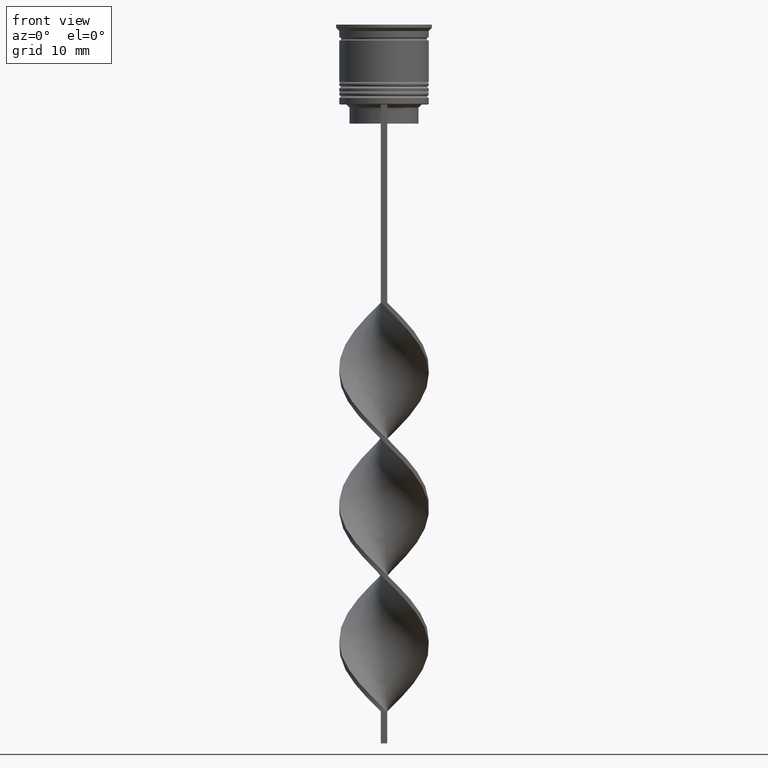
[diagram: clean part render]
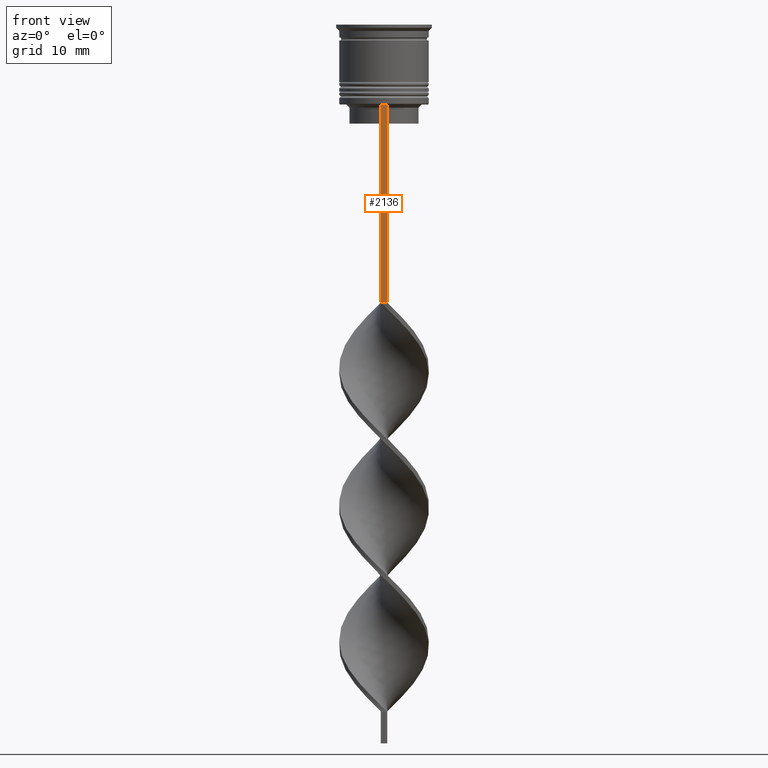
[diagram: same view with one face highlighted and labeled with its STEP entity id]
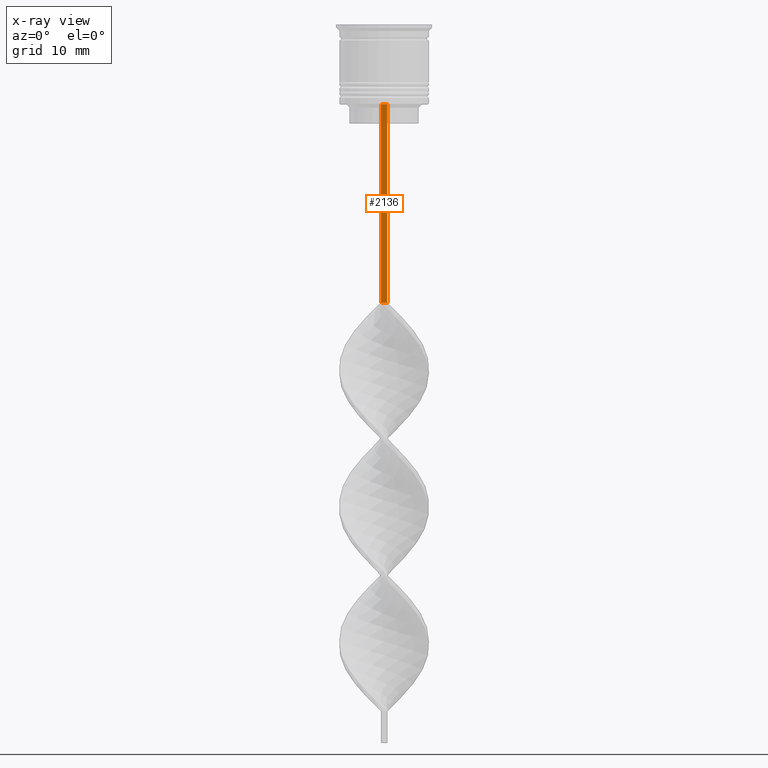
[diagram: x-ray of the same camera — body ghosted, the highlighted face saturated]
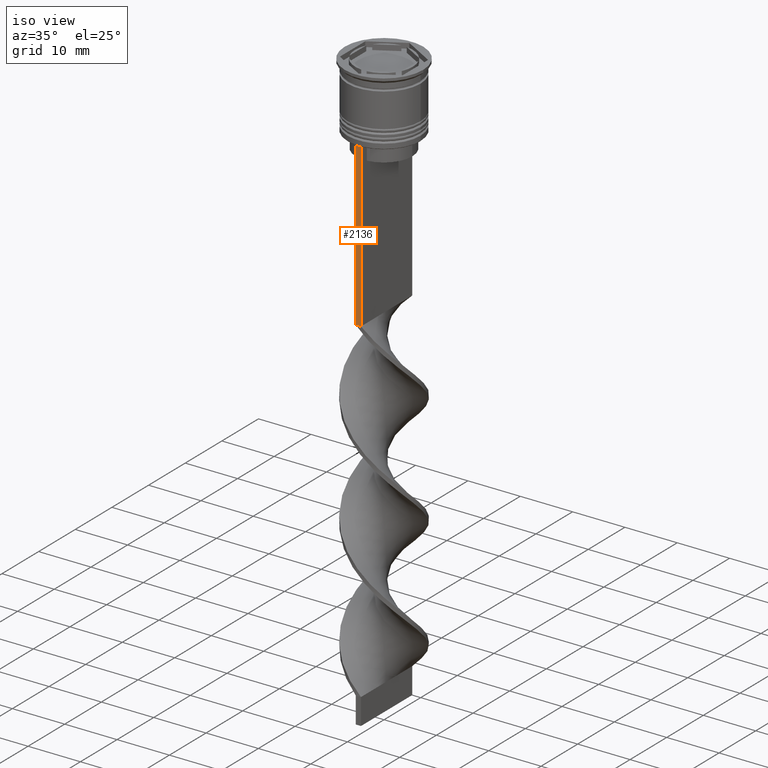
[diagram: same view with one face highlighted and labeled with its STEP entity id]
A machine part, front view. The second image highlights one B-rep face of the part: STEP entity #2136.
The next image is the same camera in x-ray: the body ghosted, the highlighted face saturated — about 0% of this face is hidden behind the body in this view.
A second angle (iso view) of the same face is appended — the face is thin or edge-on in the first view.
In plain terms, the highlighted planar face has unit normal (0, -1, -0).
Its self-contained STEP definition (entity closure, byte-faithful):
#401 = DIRECTION ( 'NONE',  ( 0.000000000000000000, -1.000000000000000000, -0.000000000000000000 ) ) ;
#423 = CARTESIAN_POINT ( 'NONE',  ( 0.5000000000000000000, -6.999999999999997335, 1.535668847618198329 ) ) ;
#630 = ORIENTED_EDGE ( 'NONE', *, *, #2573, .F. ) ;
#655 = DIRECTION ( 'NONE',  ( 0.000000000000000000, 0.000000000000000000, -1.000000000000000000 ) ) ;
#674 = EDGE_CURVE ( 'NONE', #2022, #3461, #1084, .T. ) ;
#711 = PLANE ( 'NONE',  #2145 ) ;
#742 = EDGE_LOOP ( 'NONE', ( #1028, #3161, #1706, #630 ) ) ;
#794 = CARTESIAN_POINT ( 'NONE',  ( 0.5000000000000000000, -6.999999999999997335, -43.50000000000000000 ) ) ;
#1028 = ORIENTED_EDGE ( 'NONE', *, *, #674, .F. ) ;
#1084 = LINE ( 'NONE', #2696, #1110 ) ;
#1110 = VECTOR ( 'NONE', #2742, 1000.000000000000000 ) ;
#1376 = LINE ( 'NONE', #794, #2025 ) ;
#1455 = CARTESIAN_POINT ( 'NONE',  ( 0.5000000000000000000, -6.999999999999997335, 1.535668847618198329 ) ) ;
#1587 = EDGE_CURVE ( 'NONE', #2150, #3521, #1376, .T. ) ;
#1656 = LINE ( 'NONE', #1455, #2616 ) ;
#1706 = ORIENTED_EDGE ( 'NONE', *, *, #1587, .F. ) ;
#1738 = CARTESIAN_POINT ( 'NONE',  ( 0.5000000000000000000, -6.999999999999997335, -43.50000000000000000 ) ) ;
#1751 = CARTESIAN_POINT ( 'NONE',  ( -0.5000000000000000000, -6.999999999999997335, -43.50000000000000000 ) ) ;
#2022 = VERTEX_POINT ( 'NONE', #2231 ) ;
#2025 = VECTOR ( 'NONE', #2197, 1000.000000000000000 ) ;
#2047 = LINE ( 'NONE', #3156, #2737 ) ;
#2136 = ADVANCED_FACE ( 'NONE', ( #2379 ), #711, .T. ) ;
#2145 = AXIS2_PLACEMENT_3D ( 'NONE', #423, #401, #655 ) ;
#2150 = VERTEX_POINT ( 'NONE', #1738 ) ;
#2197 = DIRECTION ( 'NONE',  ( -1.000000000000000000, 0.000000000000000000, 0.000000000000000000 ) ) ;
#2231 = CARTESIAN_POINT ( 'NONE',  ( -0.5000000000000000000, -6.999999999999997335, -12.50000000000000000 ) ) ;
#2256 = EDGE_CURVE ( 'NONE', #2022, #3521, #2047, .T. ) ;
#2379 = FACE_OUTER_BOUND ( 'NONE', #742, .T. ) ;
#2476 = DIRECTION ( 'NONE',  ( 0.000000000000000000, 0.000000000000000000, -1.000000000000000000 ) ) ;
#2561 = DIRECTION ( 'NONE',  ( 0.000000000000000000, 0.000000000000000000, -1.000000000000000000 ) ) ;
#2573 = EDGE_CURVE ( 'NONE', #3461, #2150, #1656, .T. ) ;
#2616 = VECTOR ( 'NONE', #2561, 1000.000000000000000 ) ;
#2696 = CARTESIAN_POINT ( 'NONE',  ( 0.5000000000000000000, -6.999999999999997335, -12.50000000000000000 ) ) ;
#2737 = VECTOR ( 'NONE', #2476, 1000.000000000000000 ) ;
#2742 = DIRECTION ( 'NONE',  ( 1.000000000000000000, 0.000000000000000000, 0.000000000000000000 ) ) ;
#3156 = CARTESIAN_POINT ( 'NONE',  ( -0.5000000000000000000, -6.999999999999997335, 1.535668847618198329 ) ) ;
#3161 = ORIENTED_EDGE ( 'NONE', *, *, #2256, .T. ) ;
#3379 = CARTESIAN_POINT ( 'NONE',  ( 0.5000000000000000000, -6.999999999999997335, -12.50000000000000000 ) ) ;
#3461 = VERTEX_POINT ( 'NONE', #3379 ) ;
#3521 = VERTEX_POINT ( 'NONE', #1751 ) ;